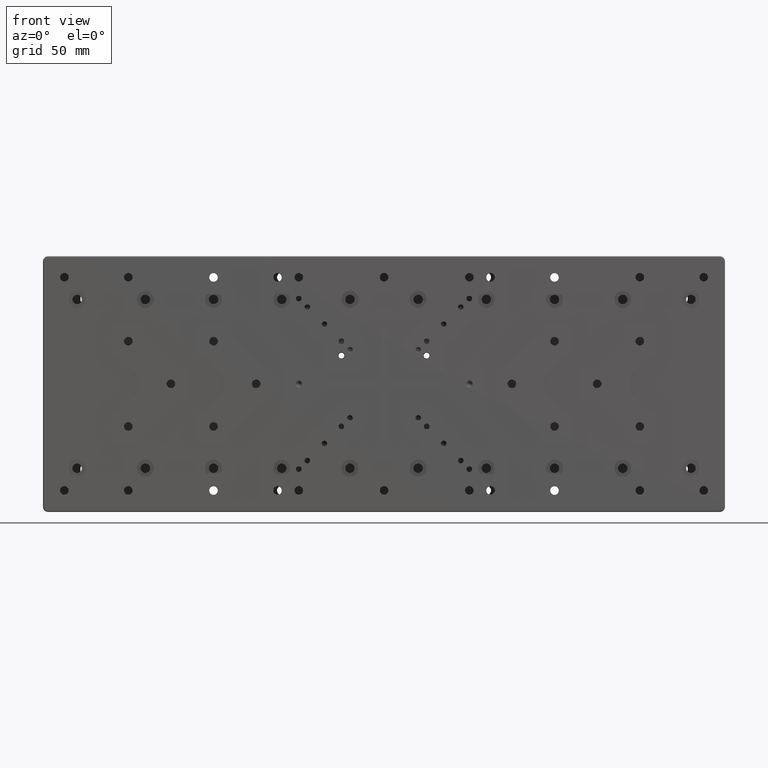
[diagram: clean part render]
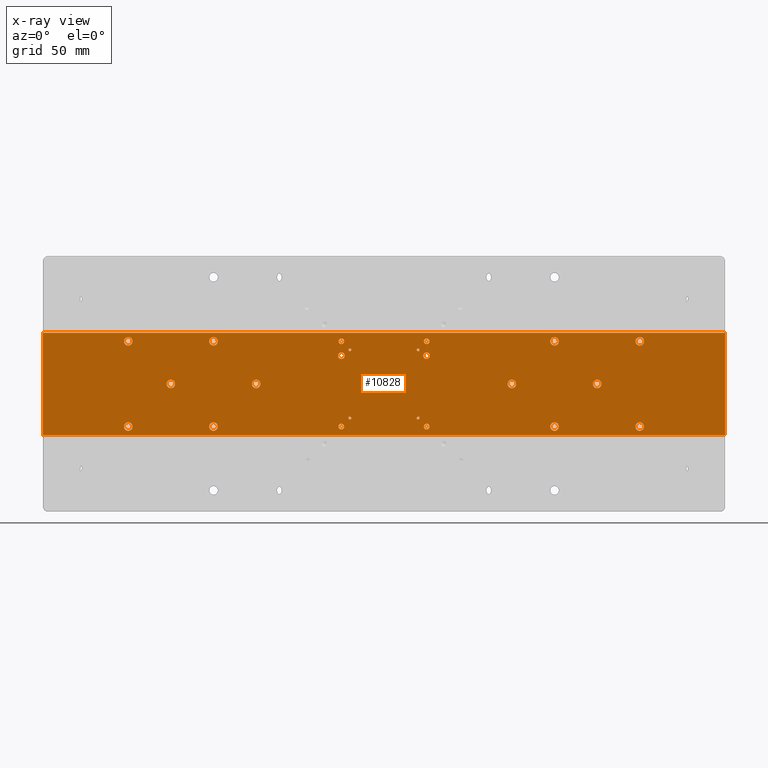
[diagram: x-ray — body ghosted, one internal face saturated and labeled with its STEP entity id]
A machine part, front view, then the same camera in x-ray: the body is ghosted and one INTERNAL B-rep face — a face not visible from any outside direction — is saturated and labeled: STEP entity #10828.
In plain terms, the highlighted planar face has unit normal (0, 1, 0).
Its self-contained STEP definition (entity closure, byte-faithful):
#51 = EDGE_CURVE ( 'NONE', #27462, #27462, #2041, .T. ) ;
#58 = CIRCLE ( 'NONE', #30970, 1.649999999999998579 ) ;
#291 = EDGE_CURVE ( 'NONE', #3021, #3021, #21226, .T. ) ;
#295 = DIRECTION ( 'NONE',  ( 0.000000000000000000, -1.000000000000000000, 0.000000000000000000 ) ) ;
#351 = EDGE_CURVE ( 'NONE', #3765, #26448, #24894, .T. ) ;
#452 = CIRCLE ( 'NONE', #19174, 0.8178602588486683089 ) ;
#736 = DIRECTION ( 'NONE',  ( -0.000000000000000000, -1.000000000000000000, -0.000000000000000000 ) ) ;
#782 = ORIENTED_EDGE ( 'NONE', *, *, #5917, .T. ) ;
#795 = DIRECTION ( 'NONE',  ( 0.000000000000000000, 0.000000000000000000, -1.000000000000000000 ) ) ;
#846 = ORIENTED_EDGE ( 'NONE', *, *, #20962, .T. ) ;
#1122 = DIRECTION ( 'NONE',  ( 0.000000000000000000, 0.000000000000000000, -1.000000000000000000 ) ) ;
#1179 = EDGE_LOOP ( 'NONE', ( #23029 ) ) ;
#1261 = DIRECTION ( 'NONE',  ( 0.000000000000000000, -1.000000000000000000, 0.000000000000000000 ) ) ;
#1461 = DIRECTION ( 'NONE',  ( -0.000000000000000000, -1.000000000000000000, -0.000000000000000000 ) ) ;
#1682 = CARTESIAN_POINT ( 'NONE',  ( -25.00000000000000000, -11.50000000000000000, 23.35000000000000142 ) ) ;
#2001 = VECTOR ( 'NONE', #18935, 1000.000000000000000 ) ;
#2041 = CIRCLE ( 'NONE', #29753, 2.500000000000000000 ) ;
#2267 = DIRECTION ( 'NONE',  ( 0.000000000000000000, 0.000000000000000000, 1.000000000000000000 ) ) ;
#2275 = VERTEX_POINT ( 'NONE', #32391 ) ;
#2466 = CIRCLE ( 'NONE', #34059, 2.499999999999998668 ) ;
#2477 = EDGE_CURVE ( 'NONE', #24985, #24830, #29938, .T. ) ;
#2650 = FACE_BOUND ( 'NONE', #20822, .T. ) ;
#2701 = DIRECTION ( 'NONE',  ( 0.000000000000000000, 0.000000000000000000, -1.000000000000000000 ) ) ;
#2900 = EDGE_CURVE ( 'NONE', #34117, #3765, #9831, .T. ) ;
#2939 = CARTESIAN_POINT ( 'NONE',  ( -200.0000000000000000, -11.50000000000000000, 30.00000000000000000 ) ) ;
#2957 = VERTEX_POINT ( 'NONE', #39937 ) ;
#3021 = VERTEX_POINT ( 'NONE', #6033 ) ;
#3631 = EDGE_CURVE ( 'NONE', #22223, #20241, #30239, .T. ) ;
#3765 = VERTEX_POINT ( 'NONE', #21886 ) ;
#4039 = EDGE_LOOP ( 'NONE', ( #17085 ) ) ;
#4127 = VERTEX_POINT ( 'NONE', #16444 ) ;
#4175 = CARTESIAN_POINT ( 'NONE',  ( 25.00000000000000000, -11.50000000000000000, 23.35000000000000142 ) ) ;
#4249 = ORIENTED_EDGE ( 'NONE', *, *, #7555, .T. ) ;
#4394 = EDGE_LOOP ( 'NONE', ( #37367 ) ) ;
#4728 = ORIENTED_EDGE ( 'NONE', *, *, #19128, .T. ) ;
#4822 = ORIENTED_EDGE ( 'NONE', *, *, #15267, .T. ) ;
#5053 = CARTESIAN_POINT ( 'NONE',  ( 25.00000000000000000, -11.50000000000000000, 25.00000000000000000 ) ) ;
#5134 = CARTESIAN_POINT ( 'NONE',  ( -75.00000000000000000, -11.50000000000000000, 0.000000000000000000 ) ) ;
#5224 = ORIENTED_EDGE ( 'NONE', *, *, #20004, .T. ) ;
#5620 = EDGE_CURVE ( 'NONE', #35709, #35709, #13531, .T. ) ;
#5654 = EDGE_CURVE ( 'NONE', #11449, #11449, #22567, .T. ) ;
#5869 = FACE_BOUND ( 'NONE', #34022, .T. ) ;
#5914 = CARTESIAN_POINT ( 'NONE',  ( -200.0000000000000000, -11.50000000000000000, 0.000000000000000000 ) ) ;
#5917 = EDGE_CURVE ( 'NONE', #23779, #23779, #30957, .T. ) ;
#6033 = CARTESIAN_POINT ( 'NONE',  ( 125.0000000000000000, -11.50000000000000000, -2.500000000000000000 ) ) ;
#6160 = LINE ( 'NONE', #2939, #10253 ) ;
#6389 = CIRCLE ( 'NONE', #23813, 0.5000000000000004441 ) ;
#6649 = EDGE_CURVE ( 'NONE', #26448, #24985, #32090, .T. ) ;
#6822 = EDGE_LOOP ( 'NONE', ( #17930 ) ) ;
#6936 = AXIS2_PLACEMENT_3D ( 'NONE', #19319, #38488, #1122 ) ;
#7002 = CARTESIAN_POINT ( 'NONE',  ( -20.00000000000000000, -11.49999999994367705, -20.00000000000000000 ) ) ;
#7098 = ORIENTED_EDGE ( 'NONE', *, *, #39458, .T. ) ;
#7208 = DIRECTION ( 'NONE',  ( 0.000000000000000000, -1.000000000000000000, -5.256737805984243905E-16 ) ) ;
#7555 = EDGE_CURVE ( 'NONE', #2957, #2957, #452, .T. ) ;
#7708 = AXIS2_PLACEMENT_3D ( 'NONE', #7002, #22959, #31644 ) ;
#7896 = CARTESIAN_POINT ( 'NONE',  ( -25.00000000000000000, -11.50000000000000000, 18.57000000000000384 ) ) ;
#8041 = EDGE_LOOP ( 'NONE', ( #36492 ) ) ;
#8060 = CARTESIAN_POINT ( 'NONE',  ( 25.00000000000000000, -11.50000000000000000, -25.00000000000000000 ) ) ;
#8107 = FACE_BOUND ( 'NONE', #19008, .T. ) ;
#8156 = CARTESIAN_POINT ( 'NONE',  ( 150.0000000000000000, -11.50000000000000000, -25.00000000000000000 ) ) ;
#8313 = FACE_OUTER_BOUND ( 'NONE', #18010, .T. ) ;
#8355 = DIRECTION ( 'NONE',  ( 0.000000000000000000, -0.000000000000000000, 1.000000000000000000 ) ) ;
#8499 = FACE_BOUND ( 'NONE', #37962, .T. ) ;
#8622 = CARTESIAN_POINT ( 'NONE',  ( 100.0000000000000000, -11.50000000000000000, -27.50000000000000000 ) ) ;
#8684 = FACE_BOUND ( 'NONE', #8041, .T. ) ;
#8791 = AXIS2_PLACEMENT_3D ( 'NONE', #12356, #15168, #18402 ) ;
#8894 = AXIS2_PLACEMENT_3D ( 'NONE', #8156, #32797, #14415 ) ;
#8896 = FACE_BOUND ( 'NONE', #1179, .T. ) ;
#8990 = DIRECTION ( 'NONE',  ( 0.000000000000000000, 0.000000000000000000, -1.000000000000000000 ) ) ;
#9343 = CIRCLE ( 'NONE', #39045, 0.8178602587918248901 ) ;
#9375 = VERTEX_POINT ( 'NONE', #39893 ) ;
#9426 = ORIENTED_EDGE ( 'NONE', *, *, #2900, .T. ) ;
#9831 = CIRCLE ( 'NONE', #13068, 0.5000000000000004441 ) ;
#9860 = ORIENTED_EDGE ( 'NONE', *, *, #2477, .T. ) ;
#9871 = ORIENTED_EDGE ( 'NONE', *, *, #18960, .T. ) ;
#10010 = ORIENTED_EDGE ( 'NONE', *, *, #33922, .T. ) ;
#10066 = VERTEX_POINT ( 'NONE', #32287 ) ;
#10116 = ORIENTED_EDGE ( 'NONE', *, *, #20163, .T. ) ;
#10118 = CARTESIAN_POINT ( 'NONE',  ( -100.0000000000000000, -11.50000000000000000, -25.00000000000000000 ) ) ;
#10164 = EDGE_CURVE ( 'NONE', #34117, #22223, #36724, .T. ) ;
#10232 = CARTESIAN_POINT ( 'NONE',  ( 20.00000000000000000, -11.50000000000134825, -20.00000000000000000 ) ) ;
#10253 = VECTOR ( 'NONE', #18492, 1000.000000000000000 ) ;
#10805 = ORIENTED_EDGE ( 'NONE', *, *, #351, .T. ) ;
#10828 = ADVANCED_FACE ( 'NONE', ( #14372, #17604, #32746, #36181, #8684, #30089, #8499, #20832, #27088, #21030, #39427, #8107, #11336, #30297, #14959, #33327, #5869, #23659, #11725, #35981, #8896, #2650, #8313 ), #24055, .T. ) ;
#10940 = AXIS2_PLACEMENT_3D ( 'NONE', #10232, #7208, #13262 ) ;
#10973 = CARTESIAN_POINT ( 'NONE',  ( 25.00000000000000000, -11.50000000000000000, 16.57000000000000028 ) ) ;
#11180 = EDGE_CURVE ( 'NONE', #26379, #26379, #20398, .T. ) ;
#11187 = DIRECTION ( 'NONE',  ( 0.000000000000000000, 0.000000000000000000, -1.000000000000000000 ) ) ;
#11291 = ORIENTED_EDGE ( 'NONE', *, *, #5654, .T. ) ;
#11336 = FACE_BOUND ( 'NONE', #6822, .T. ) ;
#11449 = VERTEX_POINT ( 'NONE', #29637 ) ;
#11471 = AXIS2_PLACEMENT_3D ( 'NONE', #17790, #1461, #13777 ) ;
#11673 = DIRECTION ( 'NONE',  ( 0.000000000000000000, 0.000000000000000000, -1.000000000000000000 ) ) ;
#11725 = FACE_BOUND ( 'NONE', #38907, .T. ) ;
#11882 = CARTESIAN_POINT ( 'NONE',  ( -199.5000000000000000, -11.50000000000000355, -30.00000000000000000 ) ) ;
#11980 = EDGE_LOOP ( 'NONE', ( #39531 ) ) ;
#12015 = EDGE_LOOP ( 'NONE', ( #13667 ) ) ;
#12356 = CARTESIAN_POINT ( 'NONE',  ( -150.0000000000000000, -11.50000000000000000, 25.00000000000000000 ) ) ;
#12894 = AXIS2_PLACEMENT_3D ( 'NONE', #15052, #295, #8990 ) ;
#13068 = AXIS2_PLACEMENT_3D ( 'NONE', #30085, #39423, #33323 ) ;
#13078 = AXIS2_PLACEMENT_3D ( 'NONE', #10973, #35425, #2267 ) ;
#13262 = DIRECTION ( 'NONE',  ( 0.000000000000000000, 0.000000000000000000, -1.000000000000000000 ) ) ;
#13346 = VERTEX_POINT ( 'NONE', #7896 ) ;
#13482 = EDGE_CURVE ( 'NONE', #26960, #26960, #37832, .T. ) ;
#13531 = CIRCLE ( 'NONE', #7708, 0.8178602587918248901 ) ;
#13666 = AXIS2_PLACEMENT_3D ( 'NONE', #10118, #29107, #26274 ) ;
#13667 = ORIENTED_EDGE ( 'NONE', *, *, #11180, .T. ) ;
#13717 = CIRCLE ( 'NONE', #13078, 2.000000000000001776 ) ;
#13755 = CARTESIAN_POINT ( 'NONE',  ( 75.00000000000000000, -11.50000000000000000, -2.500000000000000000 ) ) ;
#13777 = DIRECTION ( 'NONE',  ( 0.000000000000000000, 0.000000000000000000, 1.000000000000000000 ) ) ;
#13958 = ORIENTED_EDGE ( 'NONE', *, *, #291, .T. ) ;
#14299 = CARTESIAN_POINT ( 'NONE',  ( -25.00000000000000000, -11.50000000000000000, -26.64999999999999858 ) ) ;
#14359 = EDGE_LOOP ( 'NONE', ( #14716 ) ) ;
#14372 = FACE_BOUND ( 'NONE', #25486, .T. ) ;
#14415 = DIRECTION ( 'NONE',  ( 0.000000000000000000, 0.000000000000000000, -1.000000000000000000 ) ) ;
#14432 = CIRCLE ( 'NONE', #33779, 2.499999999999998668 ) ;
#14447 = EDGE_CURVE ( 'NONE', #13346, #13346, #37281, .T. ) ;
#14716 = ORIENTED_EDGE ( 'NONE', *, *, #31865, .T. ) ;
#14959 = FACE_BOUND ( 'NONE', #35629, .T. ) ;
#15052 = CARTESIAN_POINT ( 'NONE',  ( -25.00000000000000000, -11.50000000000000000, -25.00000000000000000 ) ) ;
#15168 = DIRECTION ( 'NONE',  ( 0.000000000000000000, -1.000000000000000000, 0.000000000000000000 ) ) ;
#15267 = EDGE_CURVE ( 'NONE', #29104, #29104, #23056, .T. ) ;
#15392 = ORIENTED_EDGE ( 'NONE', *, *, #21605, .T. ) ;
#15749 = VERTEX_POINT ( 'NONE', #21216 ) ;
#15863 = CARTESIAN_POINT ( 'NONE',  ( 100.0000000000000000, -11.50000000000000000, -25.00000000000000000 ) ) ;
#15936 = CARTESIAN_POINT ( 'NONE',  ( 150.0000000000000000, -11.50000000000000000, -27.50000000000000000 ) ) ;
#16157 = VERTEX_POINT ( 'NONE', #25433 ) ;
#16357 = ORIENTED_EDGE ( 'NONE', *, *, #13482, .T. ) ;
#16444 = CARTESIAN_POINT ( 'NONE',  ( -100.0000000000000000, -11.50000000000000000, 22.50000000000000355 ) ) ;
#16491 = EDGE_LOOP ( 'NONE', ( #4822 ) ) ;
#16640 = AXIS2_PLACEMENT_3D ( 'NONE', #21930, #37864, #22727 ) ;
#16895 = VECTOR ( 'NONE', #39656, 1000.000000000000000 ) ;
#17085 = ORIENTED_EDGE ( 'NONE', *, *, #35930, .T. ) ;
#17332 = CARTESIAN_POINT ( 'NONE',  ( -20.00000000000000000, -11.49999999994367705, -20.81786025879182489 ) ) ;
#17428 = CARTESIAN_POINT ( 'NONE',  ( -25.00000000000000000, -11.50000000000000000, 25.00000000000000000 ) ) ;
#17430 = DIRECTION ( 'NONE',  ( 0.000000000000000000, -1.000000000000000000, 0.000000000000000000 ) ) ;
#17538 = CIRCLE ( 'NONE', #13666, 2.499999999999998668 ) ;
#17604 = FACE_BOUND ( 'NONE', #19647, .T. ) ;
#17790 = CARTESIAN_POINT ( 'NONE',  ( -199.5000000000000000, -11.50000000000000355, -30.50000000000000000 ) ) ;
#17930 = ORIENTED_EDGE ( 'NONE', *, *, #14447, .T. ) ;
#18010 = EDGE_LOOP ( 'NONE', ( #25521, #9860, #10116, #5224, #31122, #34659, #9426, #10805 ) ) ;
#18193 = DIRECTION ( 'NONE',  ( 0.000000000000000000, 1.000000000000000000, 0.000000000000000000 ) ) ;
#18402 = DIRECTION ( 'NONE',  ( 0.000000000000000000, 0.000000000000000000, -1.000000000000000000 ) ) ;
#18420 = VERTEX_POINT ( 'NONE', #18625 ) ;
#18474 = CIRCLE ( 'NONE', #31372, 1.649999999999998579 ) ;
#18492 = DIRECTION ( 'NONE',  ( 1.000000000000000000, 0.000000000000000000, -0.000000000000000000 ) ) ;
#18564 = CIRCLE ( 'NONE', #16640, 2.500000000000000000 ) ;
#18625 = CARTESIAN_POINT ( 'NONE',  ( 25.00000000000000000, -11.50000000000000000, 18.57000000000000384 ) ) ;
#18935 = DIRECTION ( 'NONE',  ( 0.000000000000000000, -0.000000000000000000, 1.000000000000000000 ) ) ;
#18960 = EDGE_CURVE ( 'NONE', #15749, #15749, #18564, .T. ) ;
#19008 = EDGE_LOOP ( 'NONE', ( #13958 ) ) ;
#19128 = EDGE_CURVE ( 'NONE', #21416, #21416, #33394, .T. ) ;
#19161 = CARTESIAN_POINT ( 'NONE',  ( 75.00000000000000000, -11.50000000000000000, 0.000000000000000000 ) ) ;
#19174 = AXIS2_PLACEMENT_3D ( 'NONE', #21890, #30953, #2701 ) ;
#19319 = CARTESIAN_POINT ( 'NONE',  ( 100.0000000000000000, -11.50000000000000000, 25.00000000000000000 ) ) ;
#19634 = AXIS2_PLACEMENT_3D ( 'NONE', #32567, #17430, #22544 ) ;
#19647 = EDGE_LOOP ( 'NONE', ( #10010 ) ) ;
#19726 = VERTEX_POINT ( 'NONE', #22563 ) ;
#20004 = EDGE_CURVE ( 'NONE', #2275, #20241, #6160, .T. ) ;
#20115 = AXIS2_PLACEMENT_3D ( 'NONE', #21288, #30343, #36825 ) ;
#20163 = EDGE_CURVE ( 'NONE', #24830, #2275, #6389, .T. ) ;
#20213 = EDGE_LOOP ( 'NONE', ( #4728 ) ) ;
#20241 = VERTEX_POINT ( 'NONE', #39282 ) ;
#20398 = CIRCLE ( 'NONE', #23593, 1.649999999999998579 ) ;
#20687 = DIRECTION ( 'NONE',  ( 0.000000000000000000, 1.000000000000000000, 0.000000000000000000 ) ) ;
#20709 = CARTESIAN_POINT ( 'NONE',  ( 25.00000000000000000, -11.50000000000000000, -26.64999999999999858 ) ) ;
#20822 = EDGE_LOOP ( 'NONE', ( #782 ) ) ;
#20832 = FACE_BOUND ( 'NONE', #20213, .T. ) ;
#20962 = EDGE_CURVE ( 'NONE', #10066, #10066, #9343, .T. ) ;
#21030 = FACE_BOUND ( 'NONE', #4394, .T. ) ;
#21216 = CARTESIAN_POINT ( 'NONE',  ( -125.0000000000000000, -11.50000000000000000, -2.500000000000000000 ) ) ;
#21226 = CIRCLE ( 'NONE', #20115, 2.500000000000000000 ) ;
#21288 = CARTESIAN_POINT ( 'NONE',  ( 125.0000000000000000, -11.50000000000000000, 0.000000000000000000 ) ) ;
#21416 = VERTEX_POINT ( 'NONE', #15936 ) ;
#21519 = VERTEX_POINT ( 'NONE', #27768 ) ;
#21605 = EDGE_CURVE ( 'NONE', #16157, #16157, #28089, .T. ) ;
#21798 = ORIENTED_EDGE ( 'NONE', *, *, #5620, .T. ) ;
#21886 = CARTESIAN_POINT ( 'NONE',  ( 199.5000000000000000, -11.50000000000000000, -30.00000000000000000 ) ) ;
#21890 = CARTESIAN_POINT ( 'NONE',  ( 20.00000000000000000, -11.50000000000134825, 20.00000000000000000 ) ) ;
#21930 = CARTESIAN_POINT ( 'NONE',  ( -125.0000000000000000, -11.50000000000000000, 0.000000000000000000 ) ) ;
#21938 = CARTESIAN_POINT ( 'NONE',  ( 200.0000000000000000, -11.50000000000000000, -30.50000000000000000 ) ) ;
#22223 = VERTEX_POINT ( 'NONE', #28224 ) ;
#22440 = AXIS2_PLACEMENT_3D ( 'NONE', #27998, #736, #25370 ) ;
#22515 = EDGE_LOOP ( 'NONE', ( #21798 ) ) ;
#22544 = DIRECTION ( 'NONE',  ( 0.000000000000000000, 0.000000000000000000, -1.000000000000000000 ) ) ;
#22563 = CARTESIAN_POINT ( 'NONE',  ( 100.0000000000000000, -11.50000000000000000, 22.50000000000000355 ) ) ;
#22567 = CIRCLE ( 'NONE', #10940, 0.8178602588486683089 ) ;
#22727 = DIRECTION ( 'NONE',  ( 0.000000000000000000, 0.000000000000000000, -1.000000000000000000 ) ) ;
#22864 = CARTESIAN_POINT ( 'NONE',  ( 150.0000000000000000, -11.50000000000000000, 25.00000000000000000 ) ) ;
#22959 = DIRECTION ( 'NONE',  ( 0.000000000000000000, -1.000000000000000000, -5.256737805919051454E-16 ) ) ;
#22958 = AXIS2_PLACEMENT_3D ( 'NONE', #27281, #18193, #39613 ) ;
#23029 = ORIENTED_EDGE ( 'NONE', *, *, #27773, .T. ) ;
#23056 = CIRCLE ( 'NONE', #23156, 2.500000000000000000 ) ;
#23145 = AXIS2_PLACEMENT_3D ( 'NONE', #24101, #20687, #39472 ) ;
#23156 = AXIS2_PLACEMENT_3D ( 'NONE', #19161, #29056, #795 ) ;
#23172 = CARTESIAN_POINT ( 'NONE',  ( -200.0000000000000000, -11.50000000000000178, -30.50000000000000000 ) ) ;
#23593 = AXIS2_PLACEMENT_3D ( 'NONE', #8060, #39170, #23815 ) ;
#23659 = FACE_BOUND ( 'NONE', #22515, .T. ) ;
#23695 = EDGE_CURVE ( 'NONE', #35904, #35904, #2466, .T. ) ;
#23779 = VERTEX_POINT ( 'NONE', #14299 ) ;
#23813 = AXIS2_PLACEMENT_3D ( 'NONE', #35240, #28581, #37675 ) ;
#23815 = DIRECTION ( 'NONE',  ( 0.000000000000000000, 0.000000000000000000, -1.000000000000000000 ) ) ;
#24055 = PLANE ( 'NONE',  #22958 ) ;
#24073 = DIRECTION ( 'NONE',  ( 0.000000000000000000, 0.000000000000000000, -1.000000000000000000 ) ) ;
#24101 = CARTESIAN_POINT ( 'NONE',  ( 199.5000000000000000, -11.50000000000000355, 30.50000000000000000 ) ) ;
#24475 = DIRECTION ( 'NONE',  ( 0.000000000000000000, -1.000000000000000000, 0.000000000000000000 ) ) ;
#24830 = VERTEX_POINT ( 'NONE', #28634 ) ;
#24894 = LINE ( 'NONE', #37219, #16895 ) ;
#24985 = VERTEX_POINT ( 'NONE', #23172 ) ;
#24995 = CIRCLE ( 'NONE', #6936, 2.499999999999998668 ) ;
#25370 = DIRECTION ( 'NONE',  ( 0.000000000000000000, 0.000000000000000000, 1.000000000000000000 ) ) ;
#25433 = CARTESIAN_POINT ( 'NONE',  ( 150.0000000000000000, -11.50000000000000000, 22.50000000000000355 ) ) ;
#25486 = EDGE_LOOP ( 'NONE', ( #16357 ) ) ;
#25521 = ORIENTED_EDGE ( 'NONE', *, *, #6649, .T. ) ;
#26274 = DIRECTION ( 'NONE',  ( 0.000000000000000000, 0.000000000000000000, -1.000000000000000000 ) ) ;
#26379 = VERTEX_POINT ( 'NONE', #20709 ) ;
#26448 = VERTEX_POINT ( 'NONE', #11882 ) ;
#26662 = DIRECTION ( 'NONE',  ( 0.000000000000000000, 0.000000000000000000, -1.000000000000000000 ) ) ;
#26734 = EDGE_LOOP ( 'NONE', ( #38726 ) ) ;
#26960 = VERTEX_POINT ( 'NONE', #33615 ) ;
#27088 = FACE_BOUND ( 'NONE', #36947, .T. ) ;
#27246 = DIRECTION ( 'NONE',  ( 0.000000000000000000, 0.000000000000000000, -1.000000000000000000 ) ) ;
#27281 = CARTESIAN_POINT ( 'NONE',  ( -200.0000000000000000, -11.50000000000000000, -30.00000000000000000 ) ) ;
#27462 = VERTEX_POINT ( 'NONE', #39600 ) ;
#27630 = CARTESIAN_POINT ( 'NONE',  ( 200.0000000000000000, -11.50000000000000000, 0.000000000000000000 ) ) ;
#27768 = CARTESIAN_POINT ( 'NONE',  ( -100.0000000000000000, -11.50000000000000000, -27.50000000000000000 ) ) ;
#27773 = EDGE_CURVE ( 'NONE', #28208, #28208, #18474, .T. ) ;
#27998 = CARTESIAN_POINT ( 'NONE',  ( -25.00000000000000000, -11.50000000000000000, 16.57000000000000028 ) ) ;
#28014 = CIRCLE ( 'NONE', #19634, 2.499999999999998668 ) ;
#28089 = CIRCLE ( 'NONE', #35188, 2.499999999999998668 ) ;
#28183 = DIRECTION ( 'NONE',  ( 0.000000000000000000, -1.000000000000000000, 0.000000000000000000 ) ) ;
#28208 = VERTEX_POINT ( 'NONE', #4175 ) ;
#28224 = CARTESIAN_POINT ( 'NONE',  ( 200.0000000000000000, -11.50000000000000178, 30.50000000000000000 ) ) ;
#28412 = EDGE_CURVE ( 'NONE', #19726, #19726, #24995, .T. ) ;
#28474 = EDGE_LOOP ( 'NONE', ( #846 ) ) ;
#28581 = DIRECTION ( 'NONE',  ( 0.000000000000000000, -1.000000000000000000, 0.000000000000000000 ) ) ;
#28634 = CARTESIAN_POINT ( 'NONE',  ( -200.0000000000000000, -11.50000000000000000, 30.50000000000000000 ) ) ;
#28881 = DIRECTION ( 'NONE',  ( 0.000000000000000000, -1.000000000000000000, 0.000000000000000000 ) ) ;
#29056 = DIRECTION ( 'NONE',  ( 0.000000000000000000, -1.000000000000000000, 0.000000000000000000 ) ) ;
#29104 = VERTEX_POINT ( 'NONE', #13755 ) ;
#29107 = DIRECTION ( 'NONE',  ( 0.000000000000000000, -1.000000000000000000, 0.000000000000000000 ) ) ;
#29637 = CARTESIAN_POINT ( 'NONE',  ( 20.00000000000000000, -11.50000000000134825, -20.81786025884866831 ) ) ;
#29679 = DIRECTION ( 'NONE',  ( 0.000000000000000000, -1.000000000000000000, 0.000000000000000000 ) ) ;
#29753 = AXIS2_PLACEMENT_3D ( 'NONE', #5134, #38878, #11187 ) ;
#29938 = LINE ( 'NONE', #5914, #34520 ) ;
#30031 = DIRECTION ( 'NONE',  ( 0.000000000000000000, -1.000000000000000000, -5.256737805919039621E-16 ) ) ;
#30085 = CARTESIAN_POINT ( 'NONE',  ( 199.5000000000000000, -11.50000000000000000, -30.50000000000000000 ) ) ;
#30089 = FACE_BOUND ( 'NONE', #11980, .T. ) ;
#30239 = CIRCLE ( 'NONE', #23145, 0.5000000000000004441 ) ;
#30297 = FACE_BOUND ( 'NONE', #12015, .T. ) ;
#30343 = DIRECTION ( 'NONE',  ( 0.000000000000000000, -1.000000000000000000, 0.000000000000000000 ) ) ;
#30589 = DIRECTION ( 'NONE',  ( 0.000000000000000000, 0.000000000000000000, -1.000000000000000000 ) ) ;
#30953 = DIRECTION ( 'NONE',  ( 0.000000000000000000, -1.000000000000000000, -5.256737805984233058E-16 ) ) ;
#30957 = CIRCLE ( 'NONE', #12894, 1.649999999999998579 ) ;
#30970 = AXIS2_PLACEMENT_3D ( 'NONE', #17428, #24475, #24073 ) ;
#31122 = ORIENTED_EDGE ( 'NONE', *, *, #3631, .F. ) ;
#31372 = AXIS2_PLACEMENT_3D ( 'NONE', #5053, #29679, #27246 ) ;
#31644 = DIRECTION ( 'NONE',  ( 0.000000000000000000, 0.000000000000000000, -1.000000000000000000 ) ) ;
#31865 = EDGE_CURVE ( 'NONE', #21519, #21519, #17538, .T. ) ;
#32090 = CIRCLE ( 'NONE', #11471, 0.5000000000000004441 ) ;
#32105 = CARTESIAN_POINT ( 'NONE',  ( -150.0000000000000000, -11.50000000000000000, -25.00000000000000000 ) ) ;
#32287 = CARTESIAN_POINT ( 'NONE',  ( -20.00000000000000000, -11.49999999994367705, 19.18213974120817511 ) ) ;
#32391 = CARTESIAN_POINT ( 'NONE',  ( -199.5000000000000000, -11.50000000000000000, 30.00000000000000000 ) ) ;
#32567 = CARTESIAN_POINT ( 'NONE',  ( -100.0000000000000000, -11.50000000000000000, 25.00000000000000000 ) ) ;
#32746 = FACE_BOUND ( 'NONE', #4039, .T. ) ;
#32797 = DIRECTION ( 'NONE',  ( 0.000000000000000000, -1.000000000000000000, 0.000000000000000000 ) ) ;
#32895 = CARTESIAN_POINT ( 'NONE',  ( -20.00000000000000000, -11.49999999994367705, 20.00000000000000000 ) ) ;
#33323 = DIRECTION ( 'NONE',  ( 0.000000000000000000, 0.000000000000000000, -1.000000000000000000 ) ) ;
#33327 = FACE_BOUND ( 'NONE', #28474, .T. ) ;
#33394 = CIRCLE ( 'NONE', #8894, 2.499999999999998668 ) ;
#33615 = CARTESIAN_POINT ( 'NONE',  ( -150.0000000000000000, -11.50000000000000000, 22.50000000000000355 ) ) ;
#33779 = AXIS2_PLACEMENT_3D ( 'NONE', #32105, #28881, #26662 ) ;
#33922 = EDGE_CURVE ( 'NONE', #9375, #9375, #14432, .T. ) ;
#34022 = EDGE_LOOP ( 'NONE', ( #4249 ) ) ;
#34059 = AXIS2_PLACEMENT_3D ( 'NONE', #15863, #28183, #30589 ) ;
#34117 = VERTEX_POINT ( 'NONE', #21938 ) ;
#34520 = VECTOR ( 'NONE', #8355, 1000.000000000000000 ) ;
#34659 = ORIENTED_EDGE ( 'NONE', *, *, #10164, .F. ) ;
#35188 = AXIS2_PLACEMENT_3D ( 'NONE', #22864, #1261, #38624 ) ;
#35240 = CARTESIAN_POINT ( 'NONE',  ( -199.5000000000000000, -11.50000000000000000, 30.50000000000000000 ) ) ;
#35425 = DIRECTION ( 'NONE',  ( -0.000000000000000000, -1.000000000000000000, -0.000000000000000000 ) ) ;
#35629 = EDGE_LOOP ( 'NONE', ( #7098 ) ) ;
#35709 = VERTEX_POINT ( 'NONE', #17332 ) ;
#35904 = VERTEX_POINT ( 'NONE', #8622 ) ;
#35930 = EDGE_CURVE ( 'NONE', #4127, #4127, #28014, .T. ) ;
#35981 = FACE_BOUND ( 'NONE', #26734, .T. ) ;
#36181 = FACE_BOUND ( 'NONE', #14359, .T. ) ;
#36492 = ORIENTED_EDGE ( 'NONE', *, *, #28412, .T. ) ;
#36724 = LINE ( 'NONE', #27630, #2001 ) ;
#36825 = DIRECTION ( 'NONE',  ( 0.000000000000000000, 0.000000000000000000, -1.000000000000000000 ) ) ;
#36947 = EDGE_LOOP ( 'NONE', ( #9871 ) ) ;
#37206 = EDGE_CURVE ( 'NONE', #38867, #38867, #58, .T. ) ;
#37219 = CARTESIAN_POINT ( 'NONE',  ( -200.0000000000000000, -11.50000000000000000, -30.00000000000000000 ) ) ;
#37281 = CIRCLE ( 'NONE', #22440, 2.000000000000001776 ) ;
#37367 = ORIENTED_EDGE ( 'NONE', *, *, #51, .T. ) ;
#37675 = DIRECTION ( 'NONE',  ( 0.000000000000000000, 0.000000000000000000, -1.000000000000000000 ) ) ;
#37832 = CIRCLE ( 'NONE', #8791, 2.499999999999998668 ) ;
#37864 = DIRECTION ( 'NONE',  ( 0.000000000000000000, -1.000000000000000000, 0.000000000000000000 ) ) ;
#37962 = EDGE_LOOP ( 'NONE', ( #15392 ) ) ;
#38488 = DIRECTION ( 'NONE',  ( 0.000000000000000000, -1.000000000000000000, 0.000000000000000000 ) ) ;
#38624 = DIRECTION ( 'NONE',  ( 0.000000000000000000, 0.000000000000000000, -1.000000000000000000 ) ) ;
#38726 = ORIENTED_EDGE ( 'NONE', *, *, #37206, .T. ) ;
#38867 = VERTEX_POINT ( 'NONE', #1682 ) ;
#38878 = DIRECTION ( 'NONE',  ( 0.000000000000000000, -1.000000000000000000, 0.000000000000000000 ) ) ;
#38907 = EDGE_LOOP ( 'NONE', ( #11291 ) ) ;
#39045 = AXIS2_PLACEMENT_3D ( 'NONE', #32895, #30031, #11673 ) ;
#39170 = DIRECTION ( 'NONE',  ( 0.000000000000000000, -1.000000000000000000, 0.000000000000000000 ) ) ;
#39282 = CARTESIAN_POINT ( 'NONE',  ( 199.5000000000000000, -11.50000000000000355, 30.00000000000000000 ) ) ;
#39423 = DIRECTION ( 'NONE',  ( 0.000000000000000000, -1.000000000000000000, 0.000000000000000000 ) ) ;
#39427 = FACE_BOUND ( 'NONE', #16491, .T. ) ;
#39458 = EDGE_CURVE ( 'NONE', #18420, #18420, #13717, .T. ) ;
#39472 = DIRECTION ( 'NONE',  ( 0.000000000000000000, 0.000000000000000000, 1.000000000000000000 ) ) ;
#39531 = ORIENTED_EDGE ( 'NONE', *, *, #23695, .T. ) ;
#39600 = CARTESIAN_POINT ( 'NONE',  ( -75.00000000000000000, -11.50000000000000000, -2.500000000000000000 ) ) ;
#39613 = DIRECTION ( 'NONE',  ( 0.000000000000000000, -0.000000000000000000, 1.000000000000000000 ) ) ;
#39656 = DIRECTION ( 'NONE',  ( -1.000000000000000000, -0.000000000000000000, 0.000000000000000000 ) ) ;
#39893 = CARTESIAN_POINT ( 'NONE',  ( -150.0000000000000000, -11.50000000000000000, -27.50000000000000000 ) ) ;
#39937 = CARTESIAN_POINT ( 'NONE',  ( 20.00000000000000000, -11.50000000000134825, 19.18213974115133169 ) ) ;